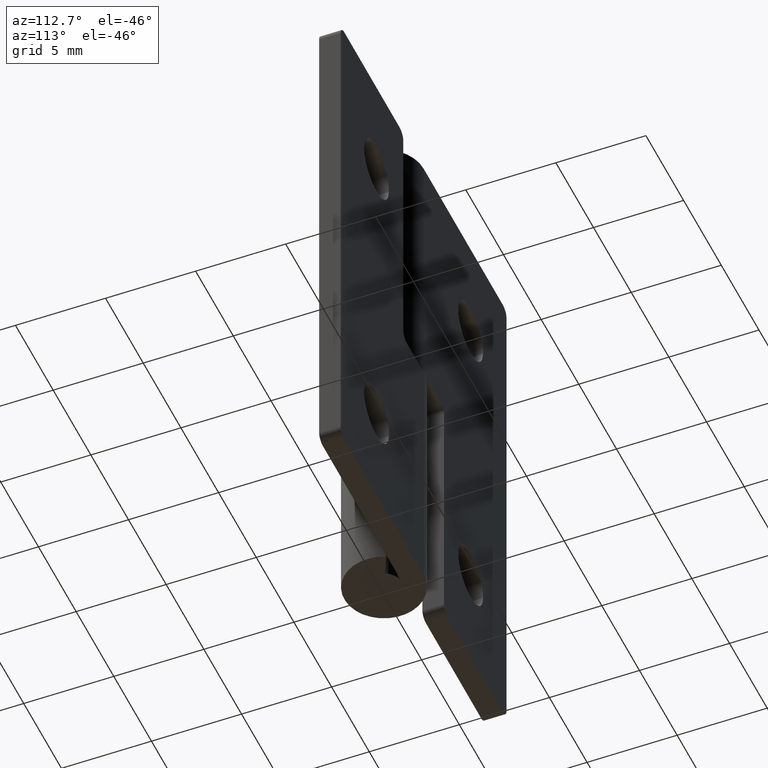
[diagram: clean part render]
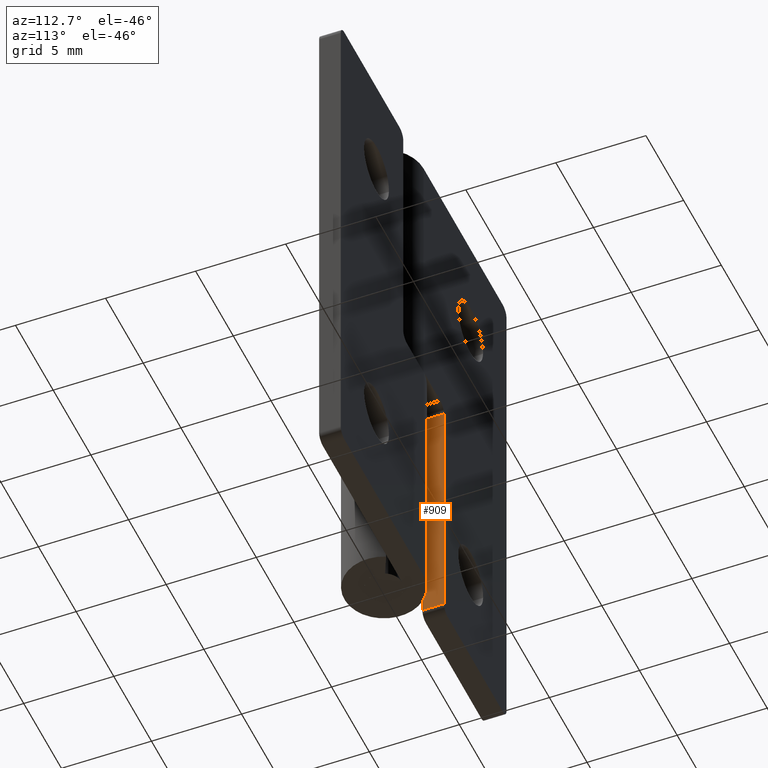
[diagram: same view with one face highlighted and labeled with its STEP entity id]
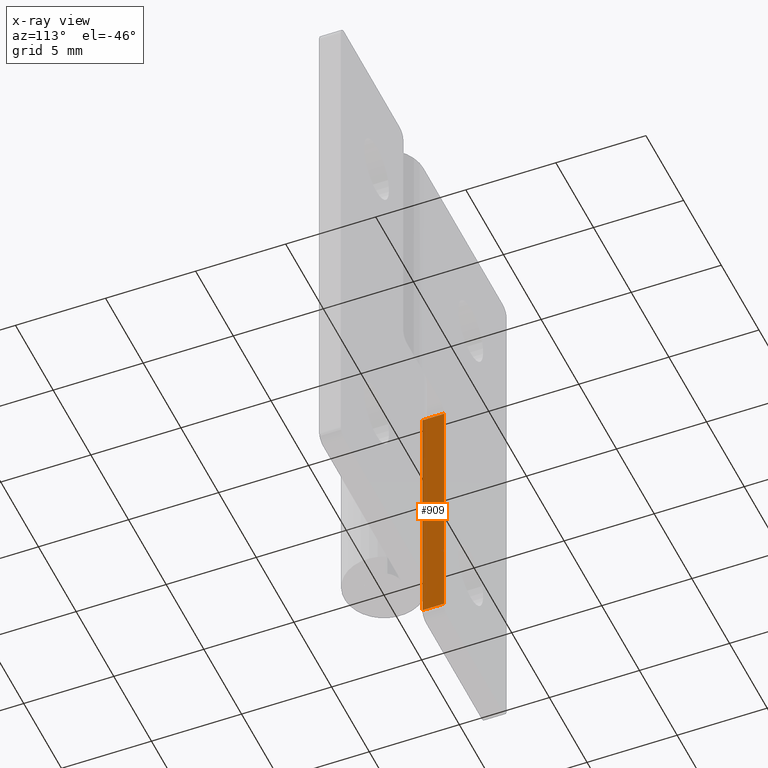
[diagram: x-ray of the same camera — body ghosted, the highlighted face saturated]
A machine part, auxiliary view. The second image highlights one B-rep face of the part: STEP entity #909.
The next image is the same camera in x-ray: the body ghosted, the highlighted face saturated — about 5% of this face is hidden behind the body in this view.
In plain terms, the highlighted face is a freeform B-spline surface patch.
Its self-contained STEP definition (entity closure, byte-faithful):
#833=CARTESIAN_POINT('',(-2.699997000000000,1.0,14.499999956366761));
#834=VERTEX_POINT('',#833);
#850=CARTESIAN_POINT('',(-2.699997000000000,2.200000999999950,14.499999956366761));
#851=VERTEX_POINT('',#850);
#852=CARTESIAN_POINT('',(-2.699997000000000,2.200000999999950,14.499999956366761));
#853=CARTESIAN_POINT('',(-2.699997000000000,1.0,14.499999956366761));
#854=QUASI_UNIFORM_CURVE('',1,(#852,#853),.UNSPECIFIED.,.F.,.U.);
#855=EDGE_CURVE('',#851,#834,#854,.T.);
#882=CARTESIAN_POINT('',(-2.699997000000000,0.940059952375837,-0.199299970685788));
#883=CARTESIAN_POINT('',(-2.699997000000000,0.940059952375837,15.199300302561820));
#884=CARTESIAN_POINT('',(-2.699997000000000,2.259941079810648,-0.199299970685788));
#885=CARTESIAN_POINT('',(-2.699997000000000,2.259941079810648,15.199300302561820));
#886=B_SPLINE_SURFACE_WITH_KNOTS('',1,1,((#882,#884),(#883,#885)),.UNSPECIFIED.,.F.,.F.,.U.,(2,2),(2,2),(0.0,15.398600273247609),(0.041708334948495,0.958291687403247),.UNSPECIFIED.);
#887=CARTESIAN_POINT('',(-2.699997000000000,1.0,0.500000000000014));
#888=VERTEX_POINT('',#887);
#889=CARTESIAN_POINT('',(-2.699997000000000,1.0,14.499999956366761));
#890=CARTESIAN_POINT('',(-2.699997000000000,1.0,0.500000000000014));
#891=QUASI_UNIFORM_CURVE('',1,(#889,#890),.UNSPECIFIED.,.F.,.U.);
#892=EDGE_CURVE('',#834,#888,#891,.T.);
#893=ORIENTED_EDGE('',*,*,#892,.T.);
#894=CARTESIAN_POINT('',(-2.699997000000000,2.200000999999950,0.500000000000014));
#895=VERTEX_POINT('',#894);
#896=CARTESIAN_POINT('',(-2.699997000000000,2.200000999999950,0.500000000000014));
#897=CARTESIAN_POINT('',(-2.699997000000000,1.0,0.500000000000014));
#898=QUASI_UNIFORM_CURVE('',1,(#896,#897),.UNSPECIFIED.,.F.,.U.);
#899=EDGE_CURVE('',#895,#888,#898,.T.);
#900=ORIENTED_EDGE('',*,*,#899,.F.);
#901=CARTESIAN_POINT('',(-2.699997000000000,2.200000999999950,14.499999956366761));
#902=CARTESIAN_POINT('',(-2.699997000000000,2.200000999999950,0.500000000000014));
#903=QUASI_UNIFORM_CURVE('',1,(#901,#902),.UNSPECIFIED.,.F.,.U.);
#904=EDGE_CURVE('',#851,#895,#903,.T.);
#905=ORIENTED_EDGE('',*,*,#904,.F.);
#906=ORIENTED_EDGE('',*,*,#855,.T.);
#907=EDGE_LOOP('',(#893,#900,#905,#906));
#908=FACE_OUTER_BOUND('',#907,.T.);
#909=ADVANCED_FACE('',(#908),#886,.F.);